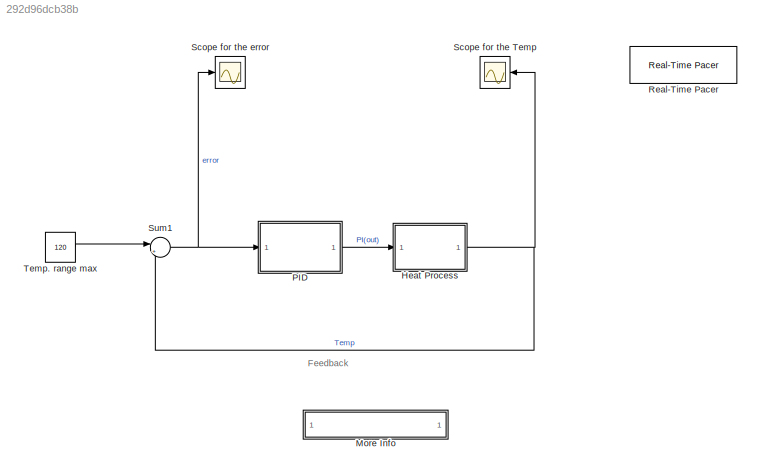
MODEL slx_292d96dcb38b
KIND model
CONFIG AbsTol = auto
CONFIG EnableMultiTasking = on
CONFIG FixedStep = auto
CONFIG MaxStep = auto
CONFIG MinStep = auto
CONFIG RelTol = 1e-3
CONFIG SampleTimeConstraint = Unconstrained
CONFIG Solver = ode45
CONFIG SolverName = ode45
CONFIG StartTime = 0.0
CONFIG StopTime = 50
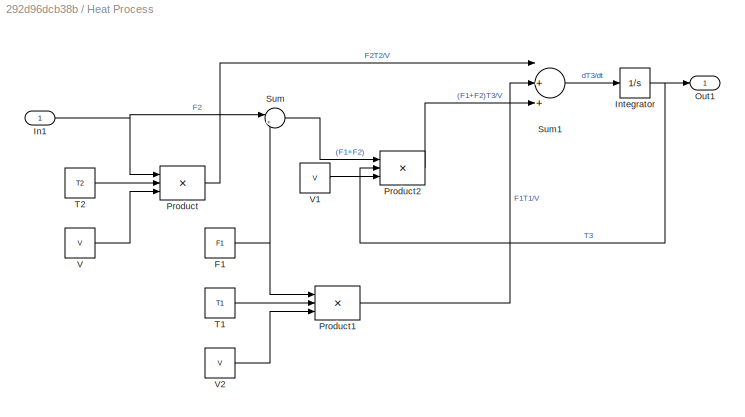
BLOCK [SubSystem] Heat Process
  Ports = [1, 1]
  RequestExecContextInheritance = off
  Variant = off
BLOCK [Constant] Heat Process/F1
  Value = F1
BLOCK [Inport] Heat Process/In1
  IconDisplay = Port number
BLOCK [Integrator] Heat Process/Integrator
  InitialCondition = T1
  Ports = [1, 1]
BLOCK [Outport] Heat Process/Out1
  IconDisplay = Port number
BLOCK [Product] Heat Process/Product
  Inputs = **/
  Ports = [3, 1]
BLOCK [Product] Heat Process/Product1
  Inputs = **/
  Ports = [3, 1]
BLOCK [Product] Heat Process/Product2
  Inputs = **/
  Ports = [3, 1]
BLOCK [Sum] Heat Process/Sum
  IconShape = round
  Inputs = |++
  Ports = [2, 1]
BLOCK [Sum] Heat Process/Sum1
  Inputs = |++-
  Ports = [3, 1]
BLOCK [Constant] Heat Process/T1
  Value = T1
BLOCK [Constant] Heat Process/T2
  Value = T2
BLOCK [Constant] Heat Process/V
  Value = V
BLOCK [Constant] Heat Process/V1
  Value = V
BLOCK [Constant] Heat Process/V2
  Value = V
BLOCK [SubSystem] More Info
  Ports = []
  RequestExecContextInheritance = off
  Variant = off
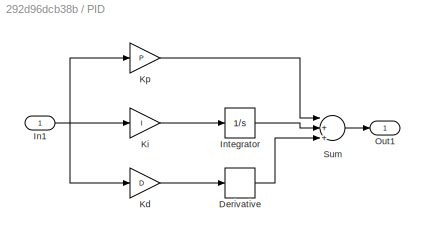
BLOCK [SubSystem] PID
  AncestorBlock = thesis_lib/PID
  Ports = [1, 1]
  RequestExecContextInheritance = off
  Variant = off
BLOCK [Derivative] PID/Derivative
BLOCK [Inport] PID/In1
  IconDisplay = Port number
BLOCK [Integrator] PID/Integrator
  Ports = [1, 1]
BLOCK [Gain] PID/Kd
  Gain = D
BLOCK [Gain] PID/Ki
  Gain = I
BLOCK [Gain] PID/Kp
  Gain = P
BLOCK [Outport] PID/Out1
  IconDisplay = Port number
BLOCK [Sum] PID/Sum
  Inputs = |+++
  Ports = [3, 1]
BLOCK [Reference] Real-Time Pacer  REF=realtime_pacer_lib/Real-Time Pacer
  Ports = []
  SourceBlock = realtime_pacer_lib/Real-Time Pacer
  SourceType = RealTime_Pacer
BLOCK [Scope] Scope for the Temp
  NumInputPorts = 1
  Ports = [1]
  ScopeSpecificationString = Simulink.scopes.TimeScopeBlockCfg('CurrentConfiguration', extmgr.ConfigurationSet(extmgr.Configuration('Core','General UI',true),extmgr.Configuration('Core','Source UI',true),extmgr.Configuration('Sources','WiredSimulink',true,'DataLoggingVariableName','ScopeData1','DataLoggingSaveFormat','StructureWithTime','DataLoggingLimitDataPoints',true,'DataLoggingDecimation','1','DataLoggingDecimateData',tr...<+1761ch>
BLOCK [Scope] Scope for the error
  NumInputPorts = 1
  Ports = [1]
  ScopeSpecificationString = Simulink.scopes.TimeScopeBlockCfg('CurrentConfiguration', extmgr.ConfigurationSet(extmgr.Configuration('Core','General UI',true),extmgr.Configuration('Core','Source UI',true),extmgr.Configuration('Sources','WiredSimulink',true,'DataLoggingSaveFormat','StructureWithTime','DataLoggingLimitDataPoints',true,'DataLoggingDecimation','1','DataLoggingDecimateData',true),extmgr.Configuration('Visuals','Tim...<+1688ch>
BLOCK [Sum] Sum1
  IconShape = round
  InputSameDT = off
  Inputs = |+-
  OutDataTypeStr = Inherit: Inherit via internal rule
  Ports = [2, 1]
  SaturateOnIntegerOverflow = off
BLOCK [Constant] Temp. range max
  Value = 120
  VectorParams1D = off
ANNOTATION (root): Feedback
ANNOTATION More Info: 1.) For the Temp. set point block, the Temperature set point or the desired temperature. 2.) For the PID controller block, the value of Kp, Ki and Kd. 3.) For the process block, the Temperature of the incoming flows, the flowrate of the cold water and the volume of the tank. 4.) Real time pacer uses the matlab pause and show the real time simulation in seconds. 5.) Real time pacer library is not a...<+153ch>
ANNOTATION More Info: Before starting the simulation of the system, the constant parameters of the system must first be supplied to the model. i.e the PI constant values
ANNOTATION More Info: Here are the parameters that needs to be specified:
ANNOTATION More Info: The response or the result of the simulation can be viewed by double-clicking the scope blocks.
NET Heat Process/F1:1 -> Heat Process/Product1:1, Heat Process/Sum:2
NET Heat Process/In1:1 -> Heat Process/Product:1, Heat Process/Sum:1
NET Heat Process/Integrator:1 -> Heat Process/Out1:1, Heat Process/Product2:2
LINE Heat Process/Product1:1 -> Heat Process/Sum1:2
LINE Heat Process/Product2:1 -> Heat Process/Sum1:3
LINE Heat Process/Product:1 -> Heat Process/Sum1:1
LINE Heat Process/Sum1:1 -> Heat Process/Integrator:1
LINE Heat Process/Sum:1 -> Heat Process/Product2:1
LINE Heat Process/T1:1 -> Heat Process/Product1:2
LINE Heat Process/T2:1 -> Heat Process/Product:2
LINE Heat Process/V1:1 -> Heat Process/Product2:3
LINE Heat Process/V2:1 -> Heat Process/Product1:3
LINE Heat Process/V:1 -> Heat Process/Product:3
NET Heat Process:1 -> Scope for the Temp:1, Sum1:2
LINE PID:1 -> Heat Process:1
NET Sum1:1 -> PID:1, Scope for the error:1
LINE Temp. range max:1 -> Sum1:1
note: NET lines group one-source signal fan-out (src -> all destinations, sorted); 1:1 wires keep LINE
